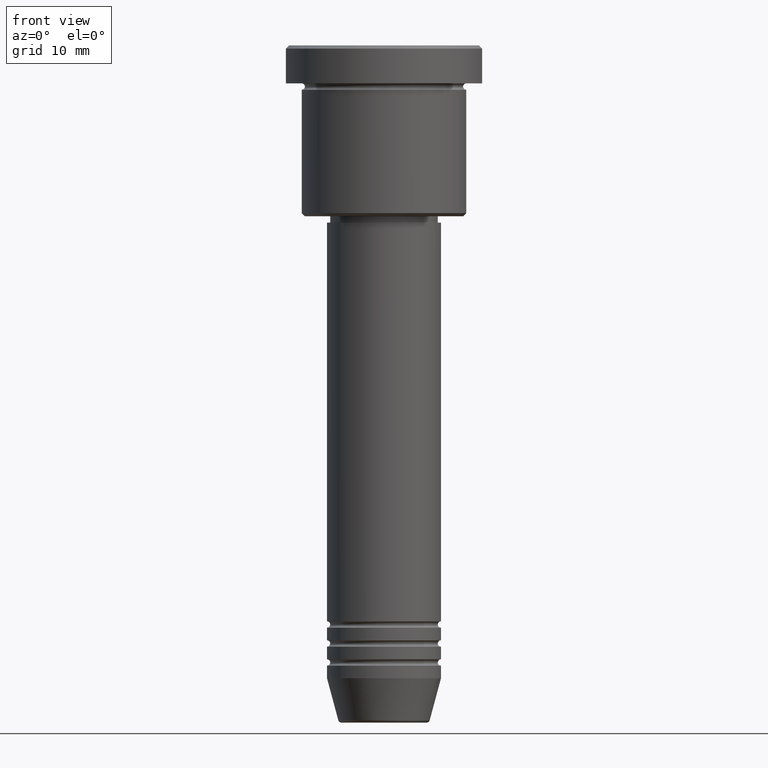
[diagram: clean part render]
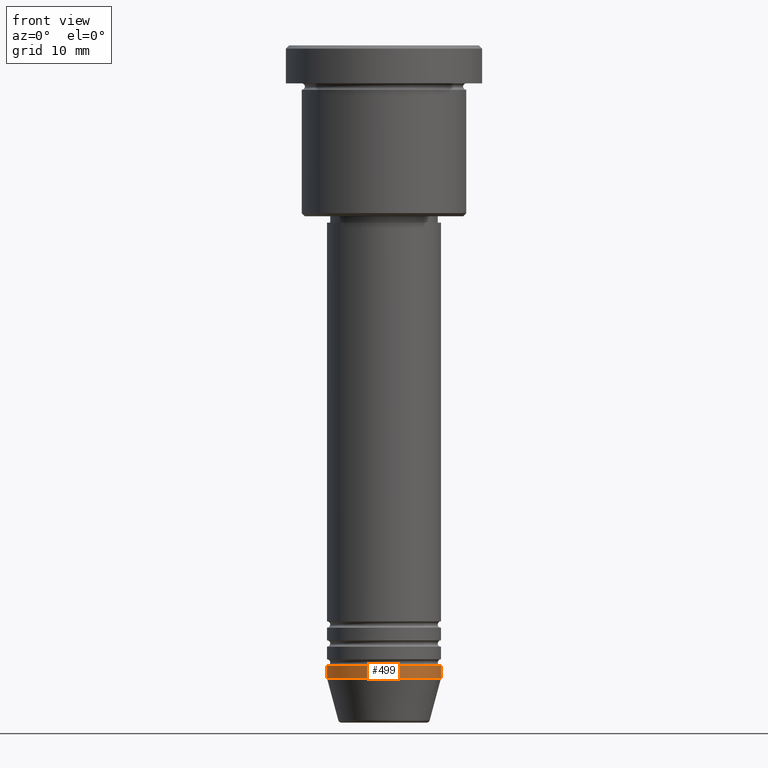
[diagram: same view with one face highlighted and labeled with its STEP entity id]
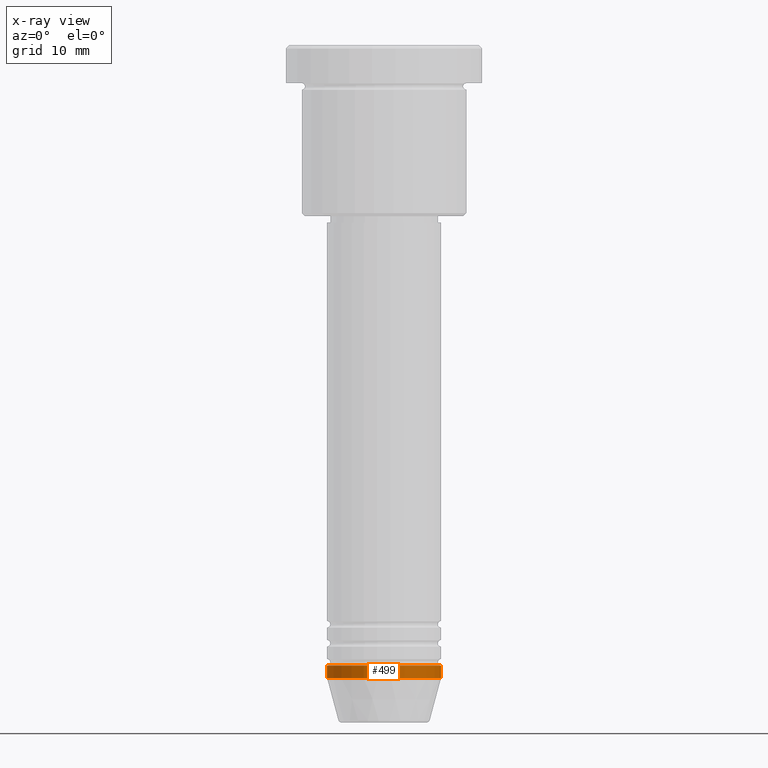
[diagram: x-ray of the same camera — body ghosted, the highlighted face saturated]
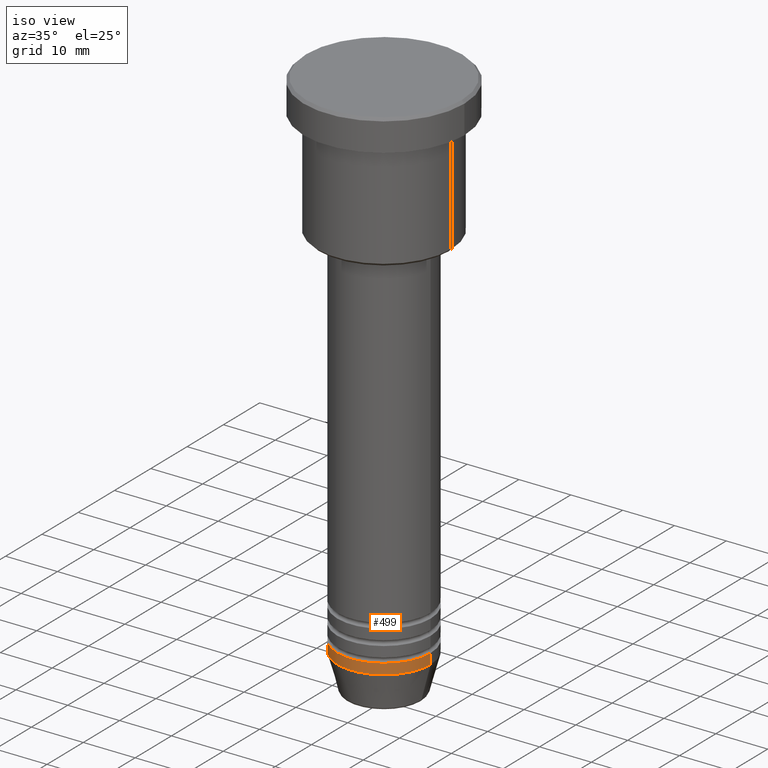
[diagram: same view with one face highlighted and labeled with its STEP entity id]
A machine part, front view. The second image highlights one B-rep face of the part: STEP entity #499.
The next image is the same camera in x-ray: the body ghosted, the highlighted face saturated — about 0% of this face is hidden behind the body in this view.
A second angle (iso view) of the same face is appended — the face is thin or edge-on in the first view.
In plain terms, the highlighted cylindrical surface (partial cylindrical patch) has radius 9 mm, axis along (-0, -0, 1).
Its self-contained STEP definition (entity closure, byte-faithful):
#54 = VERTEX_POINT ( 'NONE', #453 ) ;
#56 = LINE ( 'NONE', #869, #300 ) ;
#57 = VERTEX_POINT ( 'NONE', #182 ) ;
#85 = FACE_OUTER_BOUND ( 'NONE', #479, .T. ) ;
#133 = EDGE_CURVE ( 'NONE', #54, #57, #56, .T. ) ;
#182 = CARTESIAN_POINT ( 'NONE',  ( -9.000000000000000000, 1.102182119232617714E-15, -98.00000000000000000 ) ) ;
#188 = ORIENTED_EDGE ( 'NONE', *, *, #593, .T. ) ;
#233 = DIRECTION ( 'NONE',  ( -0.000000000000000000, -0.000000000000000000, 1.000000000000000000 ) ) ;
#254 = CARTESIAN_POINT ( 'NONE',  ( 9.000000000000000000, 0.000000000000000000, -100.0000000000000000 ) ) ;
#290 = ORIENTED_EDGE ( 'NONE', *, *, #1107, .T. ) ;
#300 = VECTOR ( 'NONE', #233, 1000.000000000000000 ) ;
#328 = CARTESIAN_POINT ( 'NONE',  ( 9.000000000000000000, 0.000000000000000000, 0.000000000000000000 ) ) ;
#331 = CYLINDRICAL_SURFACE ( 'NONE', #484, 9.000000000000000000 ) ;
#391 = VECTOR ( 'NONE', #586, 1000.000000000000000 ) ;
#392 = CARTESIAN_POINT ( 'NONE',  ( 9.000000000000000000, 0.000000000000000000, -98.00000000000000000 ) ) ;
#434 = VERTEX_POINT ( 'NONE', #392 ) ;
#451 = CARTESIAN_POINT ( 'NONE',  ( 0.000000000000000000, 0.000000000000000000, -98.00000000000000000 ) ) ;
#453 = CARTESIAN_POINT ( 'NONE',  ( -9.000000000000000000, 1.102182119232617714E-15, -100.0000000000000000 ) ) ;
#467 = CIRCLE ( 'NONE', #1143, 9.000000000000000000 ) ;
#473 = DIRECTION ( 'NONE',  ( -0.000000000000000000, -0.000000000000000000, 1.000000000000000000 ) ) ;
#479 = EDGE_LOOP ( 'NONE', ( #1053, #188, #290, #885 ) ) ;
#482 = AXIS2_PLACEMENT_3D ( 'NONE', #617, #893, #728 ) ;
#484 = AXIS2_PLACEMENT_3D ( 'NONE', #1000, #520, #716 ) ;
#499 = ADVANCED_FACE ( 'NONE', ( #85 ), #331, .T. ) ;
#517 = LINE ( 'NONE', #328, #391 ) ;
#520 = DIRECTION ( 'NONE',  ( -0.000000000000000000, -0.000000000000000000, 1.000000000000000000 ) ) ;
#586 = DIRECTION ( 'NONE',  ( -0.000000000000000000, -0.000000000000000000, 1.000000000000000000 ) ) ;
#593 = EDGE_CURVE ( 'NONE', #54, #827, #799, .T. ) ;
#617 = CARTESIAN_POINT ( 'NONE',  ( 0.000000000000000000, 0.000000000000000000, -100.0000000000000000 ) ) ;
#632 = EDGE_CURVE ( 'NONE', #57, #434, #467, .T. ) ;
#716 = DIRECTION ( 'NONE',  ( 1.000000000000000000, 0.000000000000000000, 0.000000000000000000 ) ) ;
#728 = DIRECTION ( 'NONE',  ( 1.000000000000000000, 0.000000000000000000, 0.000000000000000000 ) ) ;
#799 = CIRCLE ( 'NONE', #482, 9.000000000000000000 ) ;
#827 = VERTEX_POINT ( 'NONE', #254 ) ;
#839 = DIRECTION ( 'NONE',  ( 1.000000000000000000, 0.000000000000000000, 0.000000000000000000 ) ) ;
#869 = CARTESIAN_POINT ( 'NONE',  ( -9.000000000000000000, 1.102182119232617714E-15, 0.000000000000000000 ) ) ;
#885 = ORIENTED_EDGE ( 'NONE', *, *, #632, .F. ) ;
#893 = DIRECTION ( 'NONE',  ( -0.000000000000000000, -0.000000000000000000, 1.000000000000000000 ) ) ;
#1000 = CARTESIAN_POINT ( 'NONE',  ( 0.000000000000000000, 0.000000000000000000, 0.000000000000000000 ) ) ;
#1053 = ORIENTED_EDGE ( 'NONE', *, *, #133, .F. ) ;
#1107 = EDGE_CURVE ( 'NONE', #827, #434, #517, .T. ) ;
#1143 = AXIS2_PLACEMENT_3D ( 'NONE', #451, #473, #839 ) ;